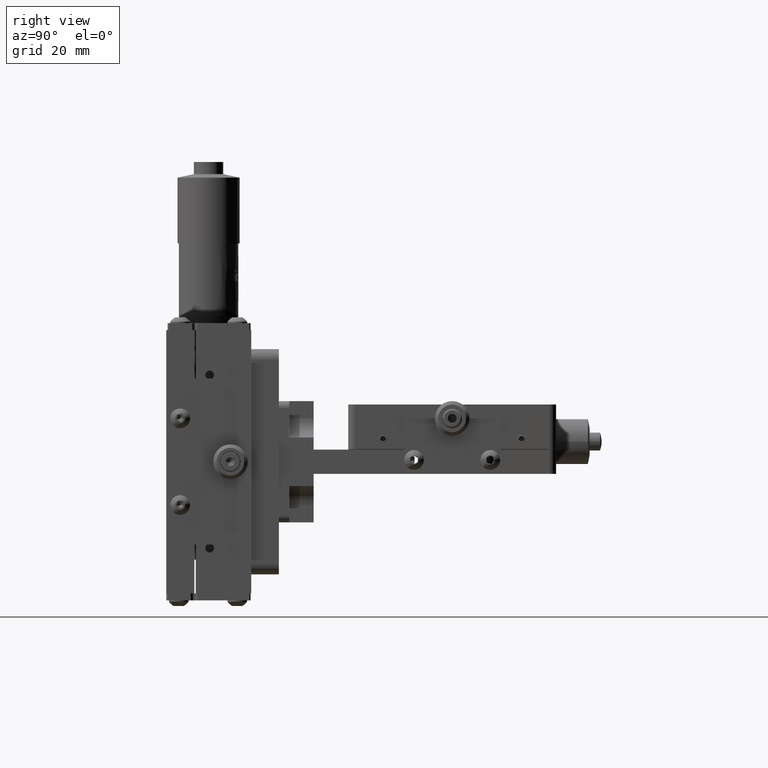
[diagram: clean part render]
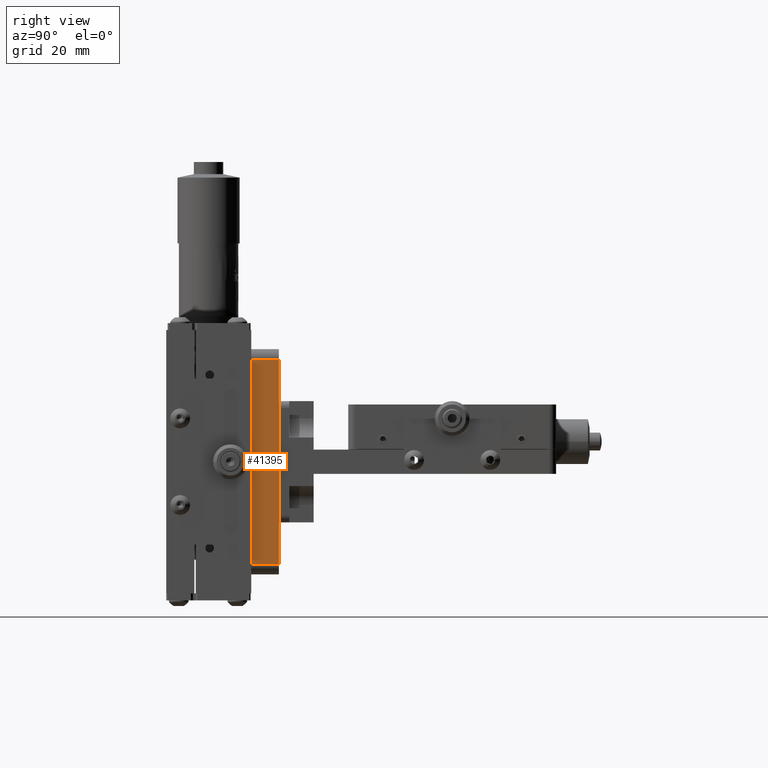
[diagram: same view with one face highlighted and labeled with its STEP entity id]
A machine part, right view. The second image highlights one B-rep face of the part: STEP entity #41395.
In plain terms, the highlighted planar face has unit normal (-1, 0, 0).
Its self-contained STEP definition (entity closure, byte-faithful):
#7093 = ORIENTED_EDGE ( 'NONE', *, *, #44623, .T. ) ;
#7389 = VERTEX_POINT ( 'NONE', #45587 ) ;
#7449 = LINE ( 'NONE', #17814, #59672 ) ;
#9699 = ORIENTED_EDGE ( 'NONE', *, *, #18497, .T. ) ;
#15144 = ORIENTED_EDGE ( 'NONE', *, *, #47721, .F. ) ;
#17814 = CARTESIAN_POINT ( 'NONE',  ( 32.50000000000000000, 32.50000000000015600, 29.50000000000000000 ) ) ;
#18497 = EDGE_CURVE ( 'NONE', #37357, #7389, #24595, .T. ) ;
#22668 = CARTESIAN_POINT ( 'NONE',  ( 32.50000000000000000, 32.50000000000015600, -32.50000000000000000 ) ) ;
#23635 = VECTOR ( 'NONE', #40609, 1000.000000000000000 ) ;
#24595 = LINE ( 'NONE', #49432, #49842 ) ;
#25496 = DIRECTION ( 'NONE',  ( -1.000000000000000000, 0.0000000000000000000, 0.0000000000000000000 ) ) ;
#25838 = AXIS2_PLACEMENT_3D ( 'NONE', #55717, #25496, #60825 ) ;
#27789 = DIRECTION ( 'NONE',  ( -0.0000000000000000000, -0.0000000000000000000, -1.000000000000000000 ) ) ;
#29380 = DIRECTION ( 'NONE',  ( -0.0000000000000000000, 1.000000000000000000, -0.0000000000000000000 ) ) ;
#29817 = VERTEX_POINT ( 'NONE', #55626 ) ;
#30382 = VECTOR ( 'NONE', #27789, 1000.000000000000000 ) ;
#32978 = FACE_OUTER_BOUND ( 'NONE', #57834, .T. ) ;
#35417 = PLANE ( 'NONE',  #25838 ) ;
#35539 = CARTESIAN_POINT ( 'NONE',  ( 32.50000000000000000, 24.50000000000014900, -32.50000000000000000 ) ) ;
#36611 = VERTEX_POINT ( 'NONE', #36839 ) ;
#36839 = CARTESIAN_POINT ( 'NONE',  ( 32.50000000000000000, 24.50000000000014900, 29.50000000000000000 ) ) ;
#37357 = VERTEX_POINT ( 'NONE', #53920 ) ;
#40609 = DIRECTION ( 'NONE',  ( -0.0000000000000000000, -0.0000000000000000000, -1.000000000000000000 ) ) ;
#41395 = ADVANCED_FACE ( 'NONE', ( #32978 ), #35417, .F. ) ;
#42365 = ORIENTED_EDGE ( 'NONE', *, *, #46381, .T. ) ;
#44623 = EDGE_CURVE ( 'NONE', #36611, #37357, #65524, .T. ) ;
#45587 = CARTESIAN_POINT ( 'NONE',  ( 32.50000000000000000, 32.50000000000015600, -29.50000000000000400 ) ) ;
#46381 = EDGE_CURVE ( 'NONE', #29817, #36611, #7449, .T. ) ;
#47721 = EDGE_CURVE ( 'NONE', #29817, #7389, #57229, .T. ) ;
#49432 = CARTESIAN_POINT ( 'NONE',  ( 32.50000000000000000, 32.50000000000015600, -29.50000000000000400 ) ) ;
#49842 = VECTOR ( 'NONE', #29380, 1000.000000000000000 ) ;
#53920 = CARTESIAN_POINT ( 'NONE',  ( 32.50000000000000000, 24.50000000000014900, -29.50000000000000400 ) ) ;
#55626 = CARTESIAN_POINT ( 'NONE',  ( 32.50000000000000000, 32.50000000000015600, 29.50000000000000000 ) ) ;
#55717 = CARTESIAN_POINT ( 'NONE',  ( 32.50000000000000000, 32.50000000000015600, -32.50000000000000000 ) ) ;
#57229 = LINE ( 'NONE', #22668, #30382 ) ;
#57834 = EDGE_LOOP ( 'NONE', ( #7093, #9699, #15144, #42365 ) ) ;
#58279 = DIRECTION ( 'NONE',  ( 0.0000000000000000000, -1.000000000000000000, 0.0000000000000000000 ) ) ;
#59672 = VECTOR ( 'NONE', #58279, 1000.000000000000000 ) ;
#60825 = DIRECTION ( 'NONE',  ( 0.0000000000000000000, 0.0000000000000000000, 1.000000000000000000 ) ) ;
#65524 = LINE ( 'NONE', #35539, #23635 ) ;